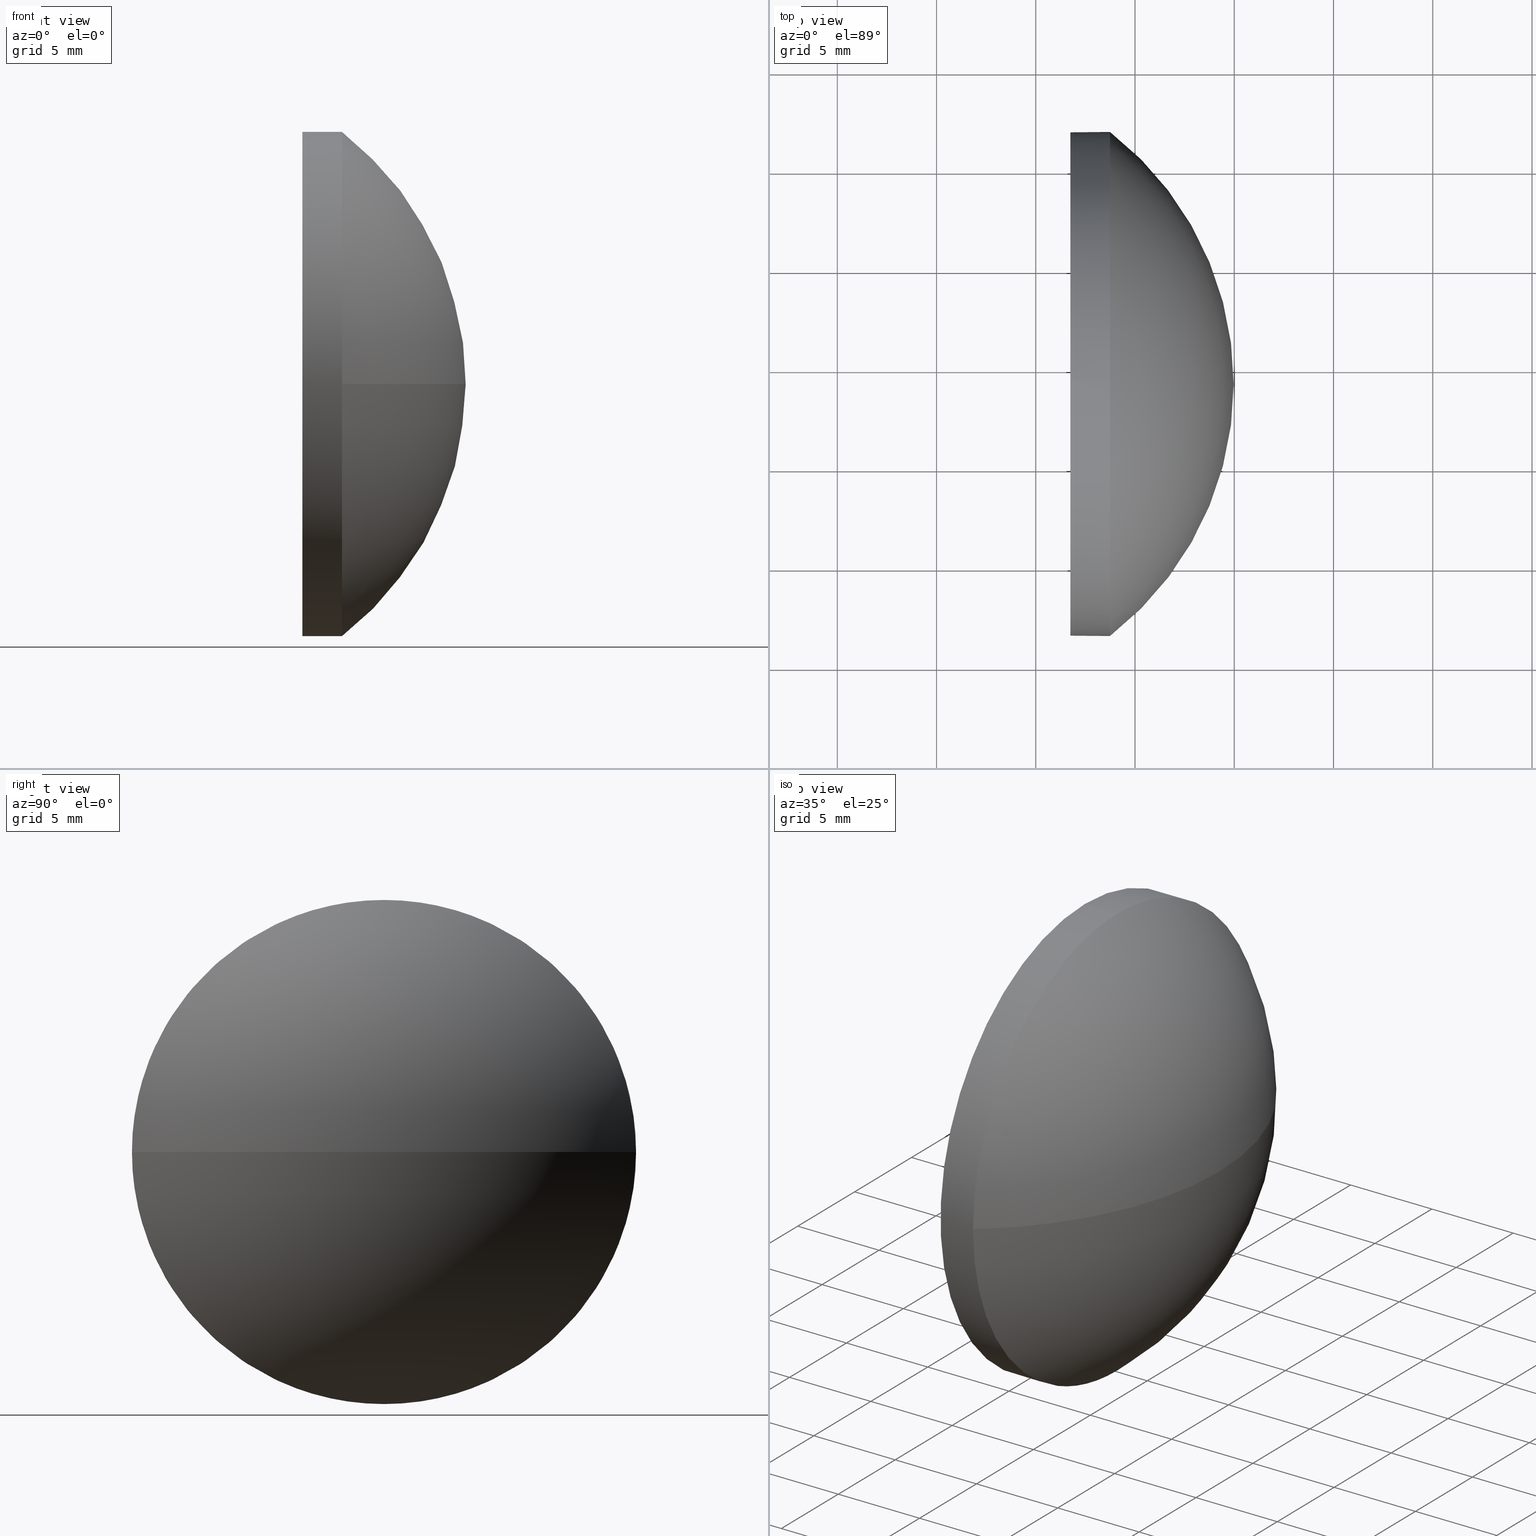
[diagram: canonical four-view strip — front | top / right | iso, engineering-drawing reading convention]
A machine part, canonical four-view strip (front | top / right | iso — engineering-drawing reading convention). The complete STEP part file that produces these views, byte-faithful:
ISO-10303-21;
HEADER;
FILE_DESCRIPTION (( 'STEP AP214' ),
    '1' );
FILE_NAME ('100373.STEP',
    '2019-06-04T06:38:46',
    ( '' ),
    ( '' ),
    'SwSTEP 2.0',
    'SolidWorks 2016',
    '' );
FILE_SCHEMA (( 'AUTOMOTIVE_DESIGN' ));
ENDSEC;

DATA;
#1 = STYLED_ITEM ( 'NONE', ( #32 ), #3 ) ;
#2 = CIRCLE ( 'NONE', #15, 16.05962279293740700 ) ;
#3 = ADVANCED_BREP_SHAPE_REPRESENTATION ( '100373', ( #174, #43 ), #112 ) ;
#4 = DIRECTION ( 'NONE',  ( 0.0000000000000000000, 0.0000000000000000000, 1.000000000000000000 ) ) ;
#5 = CARTESIAN_POINT ( 'NONE',  ( 528.7403345451293700, 109.1985540701067800, 0.0000000000000000000 ) ) ;
#6 = CARTESIAN_POINT ( 'NONE',  ( 526.7403345451293700, 109.1985540701067800, 0.0000000000000000000 ) ) ;
#7 = CARTESIAN_POINT ( 'NONE',  ( 526.7403345451293700, 109.1985540701067800, -12.70000000000000300 ) ) ;
#8 = DIRECTION ( 'NONE',  ( 0.0000000000000000000, 0.0000000000000000000, 1.000000000000000000 ) ) ;
#9 = SURFACE_STYLE_USAGE ( .BOTH. , #182 ) ;
#10 = EDGE_CURVE ( 'NONE', #137, #184, #133, .T. ) ;
#11 = DIRECTION ( 'NONE',  ( 0.0000000000000000000, 0.0000000000000000000, 1.000000000000000000 ) ) ;
#12 = FACE_OUTER_BOUND ( 'NONE', #177, .T. ) ;
#13 = STYLED_ITEM ( 'NONE', ( #67 ), #174 ) ;
#14 = SPHERICAL_SURFACE ( 'NONE', #90, 16.05962279293740700 ) ;
#15 = AXIS2_PLACEMENT_3D ( 'NONE', #31, #179, #163 ) ;
#16 = DIRECTION ( 'NONE',  ( 0.0000000000000000000, 0.0000000000000000000, -1.000000000000000000 ) ) ;
#17 = ORIENTED_EDGE ( 'NONE', *, *, #135, .F. ) ;
#18 = DIRECTION ( 'NONE',  ( -1.000000000000000000, -0.0000000000000000000, -0.0000000000000000000 ) ) ;
#19 = FILL_AREA_STYLE_COLOUR ( '', #37 ) ;
#20 = APPLICATION_CONTEXT ( 'automotive_design' ) ;
#21 = CARTESIAN_POINT ( 'NONE',  ( 518.9107117521919000, 109.1985540701067500, 0.0000000000000000000 ) ) ;
#22 = ORIENTED_EDGE ( 'NONE', *, *, #186, .T. ) ;
#23 = CARTESIAN_POINT ( 'NONE',  ( 521.0356609976745400, 109.1985540701067800, -12.70000000000000300 ) ) ;
#24 = SURFACE_SIDE_STYLE ('',( #183 ) ) ;
#25 = AXIS2_PLACEMENT_3D ( 'NONE', #78, #134, #4 ) ;
#26 = VERTEX_POINT ( 'NONE', #138 ) ;
#27 = ORIENTED_EDGE ( 'NONE', *, *, #135, .T. ) ;
#28 = CARTESIAN_POINT ( 'NONE',  ( 518.9107117521919000, 109.1985540701067500, 0.0000000000000000000 ) ) ;
#29 = DIRECTION ( 'NONE',  ( 0.0000000000000000000, 0.0000000000000000000, 1.000000000000000000 ) ) ;
#30 = AXIS2_PLACEMENT_3D ( 'NONE', #110, #82, #33 ) ;
#31 = CARTESIAN_POINT ( 'NONE',  ( 518.9107117521919000, 109.1985540701067500, 0.0000000000000000000 ) ) ;
#32 = PRESENTATION_STYLE_ASSIGNMENT (( #9 ) ) ;
#33 = DIRECTION ( 'NONE',  ( 0.0000000000000000000, 0.0000000000000000000, 1.000000000000000000 ) ) ;
#34 = AXIS2_PLACEMENT_3D ( 'NONE', #5, #55, #151 ) ;
#35 = CARTESIAN_POINT ( 'NONE',  ( 528.7403345451293700, 96.49855407010676300, -1.555301434917136700E-015 ) ) ;
#36 =( NAMED_UNIT ( * ) SI_UNIT ( $, .STERADIAN. ) SOLID_ANGLE_UNIT ( ) );
#37 = COLOUR_RGB ( '',1.000000000000000000, 1.000000000000000000, 1.000000000000000000 ) ;
#38 = ADVANCED_FACE ( 'NONE', ( #77 ), #14, .T. ) ;
#39 = EDGE_CURVE ( 'NONE', #184, #104, #161, .T. ) ;
#40 = ORIENTED_EDGE ( 'NONE', *, *, #146, .F. ) ;
#41 = CYLINDRICAL_SURFACE ( 'NONE', #100, 12.70000000000000300 ) ;
#42 = SHAPE_DEFINITION_REPRESENTATION ( #99, #3 ) ;
#43 = AXIS2_PLACEMENT_3D ( 'NONE', #139, #8, #107 ) ;
#44 = CARTESIAN_POINT ( 'NONE',  ( 528.7403345451293700, 109.1985540701067800, -12.70000000000000300 ) ) ;
#45 = ORIENTED_EDGE ( 'NONE', *, *, #75, .F. ) ;
#46 = DIRECTION ( 'NONE',  ( 0.0000000000000000000, 0.0000000000000000000, 1.000000000000000000 ) ) ;
#47 = CARTESIAN_POINT ( 'NONE',  ( 521.0356609976745400, 109.1985540701067800, 0.0000000000000000000 ) ) ;
#48 = CARTESIAN_POINT ( 'NONE',  ( 528.7403345451293700, 121.8985540701067700, 0.0000000000000000000 ) ) ;
#49 =( LENGTH_UNIT ( ) NAMED_UNIT ( * ) SI_UNIT ( .MILLI., .METRE. ) );
#50 = AXIS2_PLACEMENT_3D ( 'NONE', #89, #91, #16 ) ;
#51 =( NAMED_UNIT ( * ) SI_UNIT ( $, .STERADIAN. ) SOLID_ANGLE_UNIT ( ) );
#52 =( LENGTH_UNIT ( ) NAMED_UNIT ( * ) SI_UNIT ( .MILLI., .METRE. ) );
#53 = PRODUCT_CONTEXT ( 'NONE', #20, 'mechanical' ) ;
#54 = FACE_OUTER_BOUND ( 'NONE', #64, .T. ) ;
#55 = DIRECTION ( 'NONE',  ( -1.000000000000000000, -0.0000000000000000000, -0.0000000000000000000 ) ) ;
#56 = EDGE_CURVE ( 'NONE', #117, #159, #72, .T. ) ;
#57 = ORIENTED_EDGE ( 'NONE', *, *, #10, .T. ) ;
#58 = ORIENTED_EDGE ( 'NONE', *, *, #186, .F. ) ;
#59 = AXIS2_PLACEMENT_3D ( 'NONE', #180, #154, #181 ) ;
#60 = ORIENTED_EDGE ( 'NONE', *, *, #62, .F. ) ;
#61 = DIRECTION ( 'NONE',  ( -1.000000000000000000, -0.0000000000000000000, -0.0000000000000000000 ) ) ;
#62 = EDGE_CURVE ( 'NONE', #26, #159, #2, .T. ) ;
#63 = CARTESIAN_POINT ( 'NONE',  ( 521.0356609976745400, 109.1985540701067800, 12.70000000000000300 ) ) ;
#64 = EDGE_LOOP ( 'NONE', ( #95, #108 ) ) ;
#65 = PLANE ( 'NONE',  #50 ) ;
#66 = DIRECTION ( 'NONE',  ( -0.0000000000000000000, 0.0000000000000000000, -1.000000000000000000 ) ) ;
#67 = PRESENTATION_STYLE_ASSIGNMENT (( #142 ) ) ;
#68 = DIRECTION ( 'NONE',  ( -1.000000000000000000, -0.0000000000000000000, -0.0000000000000000000 ) ) ;
#69 = CARTESIAN_POINT ( 'NONE',  ( 518.9107117521919000, 109.1985540701067500, 0.0000000000000000000 ) ) ;
#70 = FILL_AREA_STYLE_COLOUR ( '', #96 ) ;
#71 = ORIENTED_EDGE ( 'NONE', *, *, #103, .F. ) ;
#72 = CIRCLE ( 'NONE', #176, 12.70000000000000300 ) ;
#73 = CIRCLE ( 'NONE', #172, 16.05962279293737900 ) ;
#74 = CIRCLE ( 'NONE', #30, 12.70000000000000300 ) ;
#75 = EDGE_CURVE ( 'NONE', #97, #117, #88, .T. ) ;
#76 = DIRECTION ( 'NONE',  ( 0.0000000000000000000, 0.0000000000000000000, 1.000000000000000000 ) ) ;
#77 = FACE_OUTER_BOUND ( 'NONE', #148, .T. ) ;
#78 = CARTESIAN_POINT ( 'NONE',  ( 528.7403345451293700, 109.1985540701067800, 0.0000000000000000000 ) ) ;
#79 = SPHERICAL_SURFACE ( 'NONE', #115, 16.05962279293740700 ) ;
#80 = MECHANICAL_DESIGN_GEOMETRIC_PRESENTATION_REPRESENTATION (  '', ( #1 ), #127 ) ;
#81 =( NAMED_UNIT ( * ) PLANE_ANGLE_UNIT ( ) SI_UNIT ( $, .RADIAN. ) );
#82 = DIRECTION ( 'NONE',  ( -1.000000000000000000, -0.0000000000000000000, -0.0000000000000000000 ) ) ;
#83 = ADVANCED_FACE ( 'NONE', ( #178 ), #152, .T. ) ;
#84 = VECTOR ( 'NONE', #68, 1000.000000000000000 ) ;
#85 =( NAMED_UNIT ( * ) PLANE_ANGLE_UNIT ( ) SI_UNIT ( $, .RADIAN. ) );
#86 = ORIENTED_EDGE ( 'NONE', *, *, #124, .T. ) ;
#87 = MECHANICAL_DESIGN_GEOMETRIC_PRESENTATION_REPRESENTATION (  '', ( #13 ), #150 ) ;
#88 = CIRCLE ( 'NONE', #25, 12.70000000000000300 ) ;
#89 = CARTESIAN_POINT ( 'NONE',  ( 526.7403345451293700, 109.1985540701067800, 0.0000000000000000000 ) ) ;
#90 = AXIS2_PLACEMENT_3D ( 'NONE', #28, #106, #162 ) ;
#91 = DIRECTION ( 'NONE',  ( 1.000000000000000000, 0.0000000000000000000, 0.0000000000000000000 ) ) ;
#92 = CARTESIAN_POINT ( 'NONE',  ( 526.7403345451293700, 109.1985540701067800, 12.70000000000000300 ) ) ;
#93 = ADVANCED_FACE ( 'NONE', ( #54 ), #65, .F. ) ;
#94 = CARTESIAN_POINT ( 'NONE',  ( 521.0356609976745400, 109.1985540701067800, 0.0000000000000000000 ) ) ;
#95 = ORIENTED_EDGE ( 'NONE', *, *, #39, .T. ) ;
#96 = COLOUR_RGB ( '',1.000000000000000000, 1.000000000000000000, 1.000000000000000000 ) ;
#97 = VERTEX_POINT ( 'NONE', #48 ) ;
#98 = PRODUCT_DEFINITION_FORMATION_WITH_SPECIFIED_SOURCE ( '�κ�', '', #132, .NOT_KNOWN. ) ;
#99 = PRODUCT_DEFINITION_SHAPE ( 'NONE', 'NONE',  #131 ) ;
#100 = AXIS2_PLACEMENT_3D ( 'NONE', #94, #165, #11 ) ;
#101 = PRODUCT_RELATED_PRODUCT_CATEGORY ( 'part', '', ( #132 ) ) ;
#102 = UNCERTAINTY_MEASURE_WITH_UNIT (LENGTH_MEASURE( 1.000000000000000100E-005 ), #126, 'distance_accuracy_value', 'NONE');
#103 = EDGE_CURVE ( 'NONE', #159, #137, #144, .T. ) ;
#104 = VERTEX_POINT ( 'NONE', #7 ) ;
#105 = DIRECTION ( 'NONE',  ( -1.000000000000000000, -0.0000000000000000000, -0.0000000000000000000 ) ) ;
#106 = DIRECTION ( 'NONE',  ( -0.0000000000000000000, 0.0000000000000000000, -1.000000000000000000 ) ) ;
#107 = DIRECTION ( 'NONE',  ( 1.000000000000000000, 0.0000000000000000000, 0.0000000000000000000 ) ) ;
#108 = ORIENTED_EDGE ( 'NONE', *, *, #146, .T. ) ;
#109 = DIRECTION ( 'NONE',  ( 1.000000000000000000, 0.0000000000000000000, 0.0000000000000000000 ) ) ;
#110 = CARTESIAN_POINT ( 'NONE',  ( 528.7403345451293700, 109.1985540701067800, 0.0000000000000000000 ) ) ;
#111 = ORIENTED_EDGE ( 'NONE', *, *, #56, .T. ) ;
#112 =( GEOMETRIC_REPRESENTATION_CONTEXT ( 3 ) GLOBAL_UNCERTAINTY_ASSIGNED_CONTEXT ( ( #102 ) ) GLOBAL_UNIT_ASSIGNED_CONTEXT ( ( #126, #85, #36 ) ) REPRESENTATION_CONTEXT ( 'NONE', 'WORKASPACE' ) );
#113 = LINE ( 'NONE', #23, #84 ) ;
#114 = ORIENTED_EDGE ( 'NONE', *, *, #62, .T. ) ;
#115 = AXIS2_PLACEMENT_3D ( 'NONE', #21, #66, #164 ) ;
#116 = DIRECTION ( 'NONE',  ( -1.000000000000000000, -0.0000000000000000000, -0.0000000000000000000 ) ) ;
#117 = VERTEX_POINT ( 'NONE', #44 ) ;
#118 = AXIS2_PLACEMENT_3D ( 'NONE', #47, #18, #46 ) ;
#119 =( NAMED_UNIT ( * ) SI_UNIT ( $, .STERADIAN. ) SOLID_ANGLE_UNIT ( ) );
#120 = APPLICATION_PROTOCOL_DEFINITION ( 'draft international standard', 'automotive_design', 1998, #20 ) ;
#121 = FILL_AREA_STYLE ('',( #19 ) ) ;
#122 = ADVANCED_FACE ( 'NONE', ( #12 ), #79, .T. ) ;
#123 =( NAMED_UNIT ( * ) PLANE_ANGLE_UNIT ( ) SI_UNIT ( $, .RADIAN. ) );
#124 = EDGE_CURVE ( 'NONE', #117, #104, #113, .T. ) ;
#125 = ORIENTED_EDGE ( 'NONE', *, *, #103, .T. ) ;
#126 =( LENGTH_UNIT ( ) NAMED_UNIT ( * ) SI_UNIT ( .MILLI., .METRE. ) );
#127 =( GEOMETRIC_REPRESENTATION_CONTEXT ( 3 ) GLOBAL_UNCERTAINTY_ASSIGNED_CONTEXT ( ( #158 ) ) GLOBAL_UNIT_ASSIGNED_CONTEXT ( ( #52, #123, #119 ) ) REPRESENTATION_CONTEXT ( 'NONE', 'WORKASPACE' ) );
#128 = EDGE_LOOP ( 'NONE', ( #168, #86, #157, #143, #27 ) ) ;
#129 = PRESENTATION_LAYER_ASSIGNMENT (  '', '', ( #13 ) ) ;
#130 = ORIENTED_EDGE ( 'NONE', *, *, #124, .F. ) ;
#131 = PRODUCT_DEFINITION ( 'δ֪', '', #98, #160 ) ;
#132 = PRODUCT ( '100373', '100373', '', ( #53 ) ) ;
#133 = LINE ( 'NONE', #63, #185 ) ;
#134 = DIRECTION ( 'NONE',  ( -1.000000000000000000, -0.0000000000000000000, -0.0000000000000000000 ) ) ;
#135 = EDGE_CURVE ( 'NONE', #137, #97, #74, .T. ) ;
#136 = CARTESIAN_POINT ( 'NONE',  ( 528.7403345451293700, 109.1985540701067800, 0.0000000000000000000 ) ) ;
#137 = VERTEX_POINT ( 'NONE', #169 ) ;
#138 = CARTESIAN_POINT ( 'NONE',  ( 534.9703345451292800, 109.1985540701067500, 0.0000000000000000000 ) ) ;
#139 = CARTESIAN_POINT ( 'NONE',  ( 0.0000000000000000000, 0.0000000000000000000, 0.0000000000000000000 ) ) ;
#140 = FILL_AREA_STYLE ('',( #70 ) ) ;
#141 = UNCERTAINTY_MEASURE_WITH_UNIT (LENGTH_MEASURE( 1.000000000000000100E-005 ), #49, 'distance_accuracy_value', 'NONE');
#142 = SURFACE_STYLE_USAGE ( .BOTH. , #24 ) ;
#143 = ORIENTED_EDGE ( 'NONE', *, *, #10, .F. ) ;
#144 = CIRCLE ( 'NONE', #34, 12.70000000000000300 ) ;
#145 = EDGE_LOOP ( 'NONE', ( #130, #111, #125, #57, #40 ) ) ;
#146 = EDGE_CURVE ( 'NONE', #104, #184, #149, .T. ) ;
#147 = FACE_OUTER_BOUND ( 'NONE', #145, .T. ) ;
#148 = EDGE_LOOP ( 'NONE', ( #60, #22, #17, #71 ) ) ;
#149 = CIRCLE ( 'NONE', #59, 12.70000000000000300 ) ;
#150 =( GEOMETRIC_REPRESENTATION_CONTEXT ( 3 ) GLOBAL_UNCERTAINTY_ASSIGNED_CONTEXT ( ( #141 ) ) GLOBAL_UNIT_ASSIGNED_CONTEXT ( ( #49, #81, #51 ) ) REPRESENTATION_CONTEXT ( 'NONE', 'WORKASPACE' ) );
#151 = DIRECTION ( 'NONE',  ( 0.0000000000000000000, 0.0000000000000000000, 1.000000000000000000 ) ) ;
#152 = CYLINDRICAL_SURFACE ( 'NONE', #118, 12.70000000000000300 ) ;
#153 = APPLICATION_PROTOCOL_DEFINITION ( 'draft international standard', 'automotive_design', 1998, #156 ) ;
#154 = DIRECTION ( 'NONE',  ( -1.000000000000000000, -0.0000000000000000000, -0.0000000000000000000 ) ) ;
#155 = AXIS2_PLACEMENT_3D ( 'NONE', #6, #61, #29 ) ;
#156 = APPLICATION_CONTEXT ( 'automotive_design' ) ;
#157 = ORIENTED_EDGE ( 'NONE', *, *, #39, .F. ) ;
#158 = UNCERTAINTY_MEASURE_WITH_UNIT (LENGTH_MEASURE( 1.000000000000000100E-005 ), #52, 'distance_accuracy_value', 'NONE');
#159 = VERTEX_POINT ( 'NONE', #35 ) ;
#160 = PRODUCT_DEFINITION_CONTEXT ( 'detailed design', #156, 'design' ) ;
#161 = CIRCLE ( 'NONE', #155, 12.70000000000000300 ) ;
#162 = DIRECTION ( 'NONE',  ( 0.0000000000000000000, 1.000000000000000000, 0.0000000000000000000 ) ) ;
#163 = DIRECTION ( 'NONE',  ( 0.0000000000000000000, 1.000000000000000000, 1.224646799147353200E-016 ) ) ;
#164 = DIRECTION ( 'NONE',  ( 0.0000000000000000000, 1.000000000000000000, 0.0000000000000000000 ) ) ;
#165 = DIRECTION ( 'NONE',  ( -1.000000000000000000, -0.0000000000000000000, -0.0000000000000000000 ) ) ;
#166 = PRESENTATION_LAYER_ASSIGNMENT (  '', '', ( #1 ) ) ;
#167 = DIRECTION ( 'NONE',  ( -0.0000000000000000000, 0.0000000000000000000, 1.000000000000000000 ) ) ;
#168 = ORIENTED_EDGE ( 'NONE', *, *, #75, .T. ) ;
#169 = CARTESIAN_POINT ( 'NONE',  ( 528.7403345451293700, 109.1985540701067800, 12.70000000000000300 ) ) ;
#170 = SURFACE_STYLE_FILL_AREA ( #140 ) ;
#171 = ADVANCED_FACE ( 'NONE', ( #147 ), #41, .T. ) ;
#172 = AXIS2_PLACEMENT_3D ( 'NONE', #69, #167, #109 ) ;
#173 = CLOSED_SHELL ( 'NONE', ( #83, #122, #38, #171, #93 ) ) ;
#174 = MANIFOLD_SOLID_BREP ( '��ת1', #173 ) ;
#175 = ORIENTED_EDGE ( 'NONE', *, *, #56, .F. ) ;
#176 = AXIS2_PLACEMENT_3D ( 'NONE', #136, #116, #76 ) ;
#177 = EDGE_LOOP ( 'NONE', ( #58, #114, #175, #45 ) ) ;
#178 = FACE_OUTER_BOUND ( 'NONE', #128, .T. ) ;
#179 = DIRECTION ( 'NONE',  ( 0.0000000000000000000, 1.224646799147353200E-016, -1.000000000000000000 ) ) ;
#180 = CARTESIAN_POINT ( 'NONE',  ( 526.7403345451293700, 109.1985540701067800, 0.0000000000000000000 ) ) ;
#181 = DIRECTION ( 'NONE',  ( 0.0000000000000000000, 0.0000000000000000000, 1.000000000000000000 ) ) ;
#182 = SURFACE_SIDE_STYLE ('',( #170 ) ) ;
#183 = SURFACE_STYLE_FILL_AREA ( #121 ) ;
#184 = VERTEX_POINT ( 'NONE', #92 ) ;
#185 = VECTOR ( 'NONE', #105, 1000.000000000000000 ) ;
#186 = EDGE_CURVE ( 'NONE', #26, #97, #73, .T. ) ;
ENDSEC;
END-ISO-10303-21;
